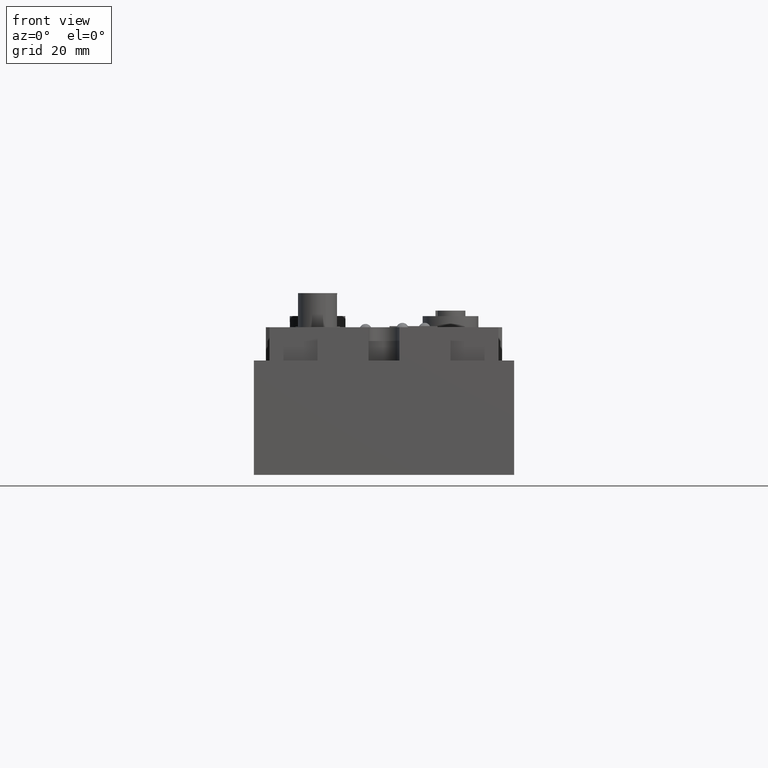
[diagram: clean part render]
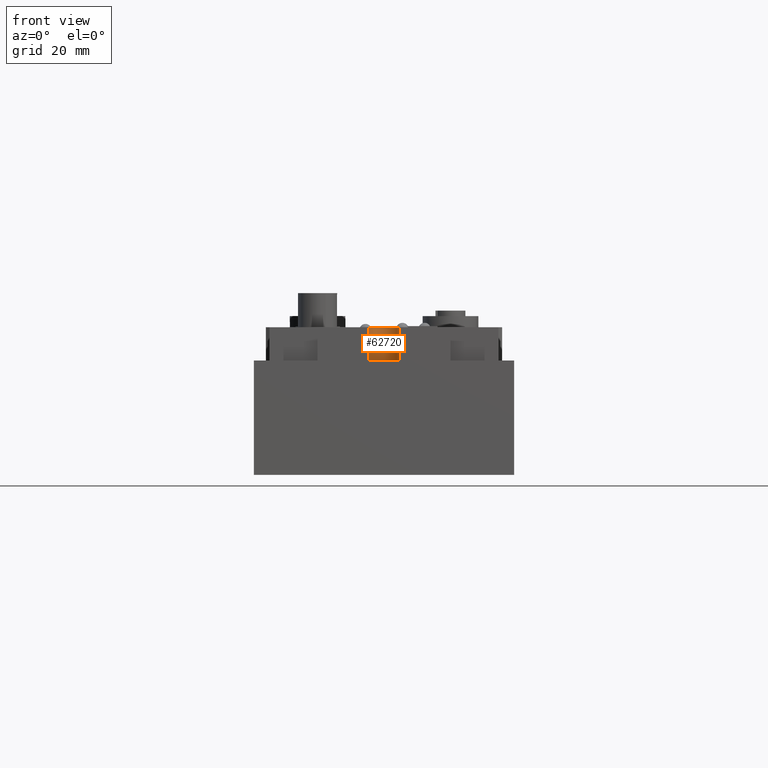
[diagram: same view with one face highlighted and labeled with its STEP entity id]
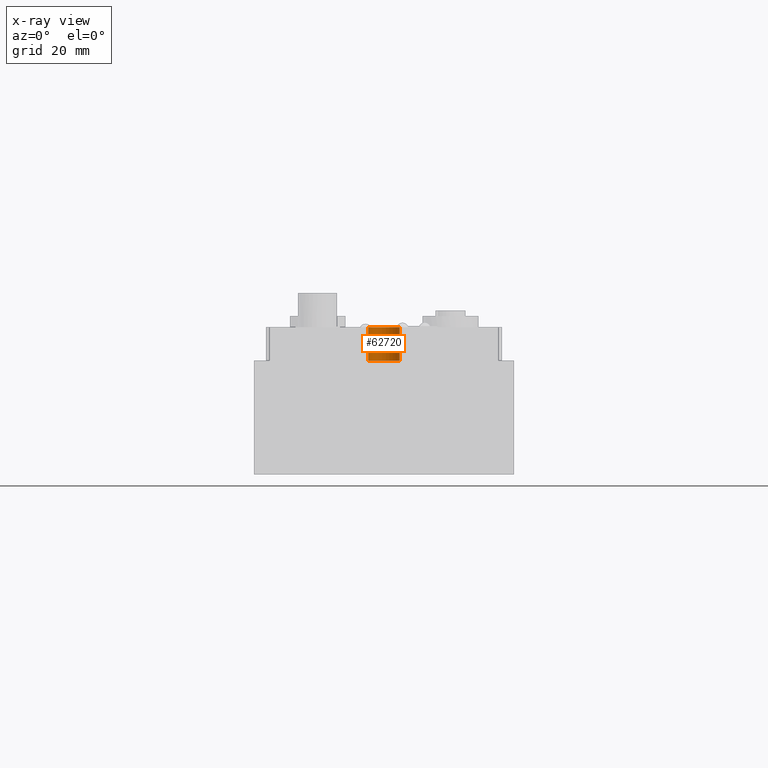
[diagram: x-ray of the same camera — body ghosted, the highlighted face saturated]
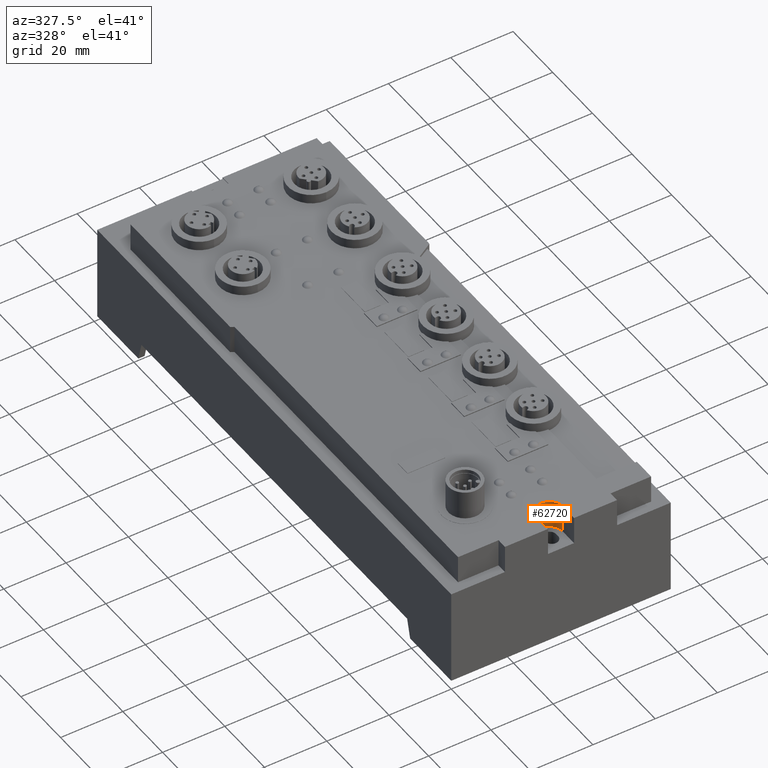
[diagram: same view with one face highlighted and labeled with its STEP entity id]
A machine part, front view. The second image highlights one B-rep face of the part: STEP entity #62720.
The next image is the same camera in x-ray: the body ghosted, the highlighted face saturated — about 0% of this face is hidden behind the body in this view.
A second angle (auxiliary view) of the same face is appended — the face is thin or edge-on in the first view.
In plain terms, the highlighted cylindrical surface (edge-blend (fillet) strip) has radius 4.2 mm, axis along (0, 0, 1).
Its self-contained STEP definition (entity closure, byte-faithful):
#21890=CARTESIAN_POINT('',(-38.3,-200.175,-9.00000000000003));
#21900=VERTEX_POINT('',#21890);
#21950=CARTESIAN_POINT('',(-38.3,-200.175,-9.00000000000003));
#21960=DIRECTION('',(0.,0.,1.));
#21970=VECTOR('',#21960,1.);
#21980=LINE('',#21950,#21970);
#21990=CARTESIAN_POINT('',(-38.3,-200.175,-6.49323115306981E-12));
#22000=VERTEX_POINT('',#21990);
#22010=EDGE_CURVE('',#21900,#22000,#21980,.T.);
#25440=CARTESIAN_POINT('',(-46.7,-200.175,-6.73416877816635E-12));
#25450=VERTEX_POINT('',#25440);
#25480=CARTESIAN_POINT('',(-46.7,-200.175,-9.00000000000003));
#25490=DIRECTION('',(0.,0.,1.));
#25500=VECTOR('',#25490,1.);
#25510=LINE('',#25480,#25500);
#25520=CARTESIAN_POINT('',(-46.7,-200.175,-9.00000000000003));
#25530=VERTEX_POINT('',#25520);
#25540=EDGE_CURVE('',#25530,#25450,#25510,.T.);
#48160=CARTESIAN_POINT('',(-42.5,-200.175,-9.00000000000003));
#48170=DIRECTION('',(0.,0.,-1.));
#48180=DIRECTION('',(1.,0.,0.));
#48190=AXIS2_PLACEMENT_3D('',#48160,#48170,#48180);
#48200=CIRCLE('',#48190,4.2);
#48210=EDGE_CURVE('',#25530,#21900,#48200,.T.);
#62550=CARTESIAN_POINT('',(-42.5,-200.175,-9.00000000000003));
#62560=DIRECTION('',(0.,0.,1.));
#62570=DIRECTION('',(1.,0.,0.));
#62580=AXIS2_PLACEMENT_3D('',#62550,#62560,#62570);
#62590=CYLINDRICAL_SURFACE('',#62580,4.2);
#62600=ORIENTED_EDGE('',*,*,#25540,.F.);
#62610=CARTESIAN_POINT('',(-42.5,-200.175,-6.73416877816635E-12));
#62620=DIRECTION('',(0.,0.,-1.));
#62630=DIRECTION('',(1.,0.,0.));
#62640=AXIS2_PLACEMENT_3D('',#62610,#62620,#62630);
#62650=CIRCLE('',#62640,4.2);
#62660=EDGE_CURVE('',#25450,#22000,#62650,.T.);
#62670=ORIENTED_EDGE('',*,*,#62660,.F.);
#62680=ORIENTED_EDGE('',*,*,#22010,.T.);
#62690=ORIENTED_EDGE('',*,*,#48210,.T.);
#62700=EDGE_LOOP('',(#62690,#62680,#62670,#62600));
#62710=FACE_OUTER_BOUND('',#62700,.T.);
#62720=ADVANCED_FACE('',(#62710),#62590,.F.);